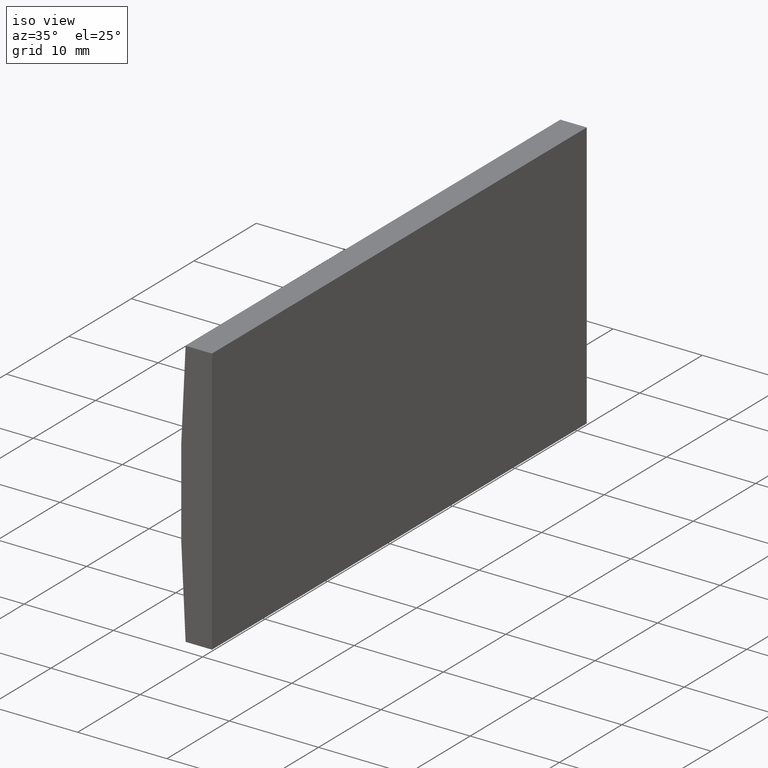
[diagram: clean part render]
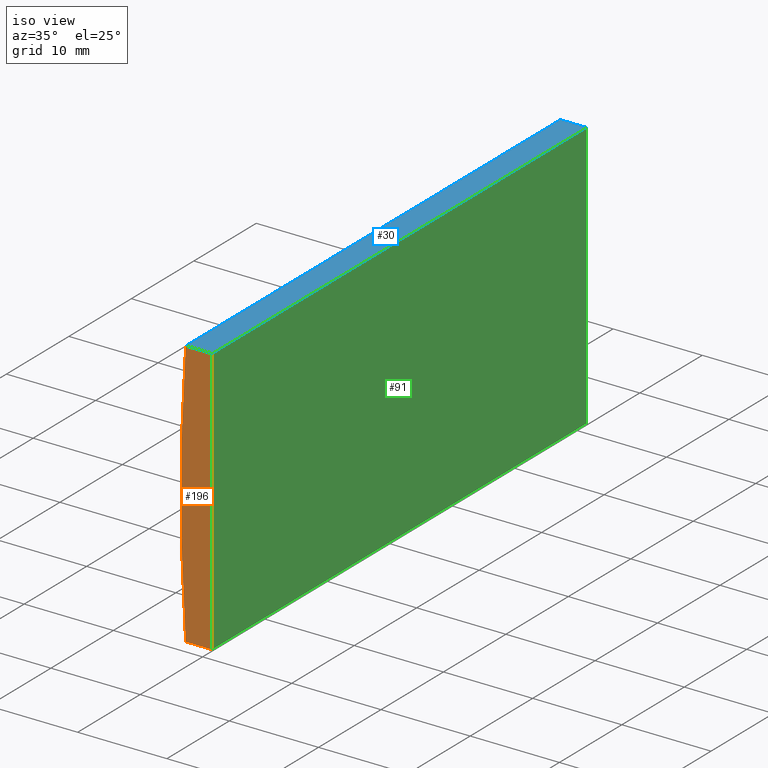
[diagram: same view with three faces highlighted in distinct colors, each labeled with its STEP entity id]
A machine part, iso view with three faces highlighted in distinct colors.
Their STEP definitions:

[orange] entity #196 — the highlighted planar face has unit normal (0, 1, 0).
#5 = CIRCLE ( 'NONE', #136, 206.8000000000000400 ) ;
#9 = CARTESIAN_POINT ( 'NONE',  ( -198.9447956651487500, 0.0000000000000000000, 15.00000000000000000 ) ) ;
#12 = VECTOR ( 'NONE', #93, 1000.000000000000000 ) ;
#21 = ORIENTED_EDGE ( 'NONE', *, *, #84, .F. ) ;
#38 = DIRECTION ( 'NONE',  ( 0.0000000000000000000, 1.000000000000000000, 0.0000000000000000000 ) ) ;
#56 = VERTEX_POINT ( 'NONE', #157 ) ;
#60 = EDGE_CURVE ( 'NONE', #118, #56, #5, .T. ) ;
#63 = LINE ( 'NONE', #129, #90 ) ;
#68 = CARTESIAN_POINT ( 'NONE',  ( 4.355204334851265500, 0.0000000000000000000, 4.286263797015675000E-017 ) ) ;
#73 = VECTOR ( 'NONE', #134, 1000.000000000000000 ) ;
#75 = CARTESIAN_POINT ( 'NONE',  ( -201.9000743854763000, 0.0000000000000000000, -15.00000000000000000 ) ) ;
#80 = EDGE_LOOP ( 'NONE', ( #192, #21, #106, #155 ) ) ;
#84 = EDGE_CURVE ( 'NONE', #163, #118, #63, .T. ) ;
#86 = CARTESIAN_POINT ( 'NONE',  ( -198.9447956651487500, 0.0000000000000000000, -15.00000000000000400 ) ) ;
#88 = AXIS2_PLACEMENT_3D ( 'NONE', #68, #191, #130 ) ;
#89 = VERTEX_POINT ( 'NONE', #9 ) ;
#90 = VECTOR ( 'NONE', #164, 1000.000000000000000 ) ;
#93 = DIRECTION ( 'NONE',  ( -0.0000000000000000000, -0.0000000000000000000, -1.000000000000000000 ) ) ;
#98 = EDGE_CURVE ( 'NONE', #89, #163, #203, .T. ) ;
#102 = CARTESIAN_POINT ( 'NONE',  ( -198.9447956651487500, 0.0000000000000000000, -15.00000000000000400 ) ) ;
#106 = ORIENTED_EDGE ( 'NONE', *, *, #98, .F. ) ;
#111 = FACE_OUTER_BOUND ( 'NONE', #80, .T. ) ;
#118 = VERTEX_POINT ( 'NONE', #75 ) ;
#122 = CARTESIAN_POINT ( 'NONE',  ( -201.9000743854763000, 0.0000000000000000000, 15.00000000000000000 ) ) ;
#123 = LINE ( 'NONE', #122, #73 ) ;
#125 = PLANE ( 'NONE',  #88 ) ;
#129 = CARTESIAN_POINT ( 'NONE',  ( -201.9000743854763000, 0.0000000000000000000, -15.00000000000000000 ) ) ;
#130 = DIRECTION ( 'NONE',  ( 0.0000000000000000000, -0.0000000000000000000, 1.000000000000000000 ) ) ;
#134 = DIRECTION ( 'NONE',  ( 1.000000000000000000, 0.0000000000000000000, 0.0000000000000000000 ) ) ;
#136 = AXIS2_PLACEMENT_3D ( 'NONE', #177, #38, #181 ) ;
#155 = ORIENTED_EDGE ( 'NONE', *, *, #179, .F. ) ;
#157 = CARTESIAN_POINT ( 'NONE',  ( -201.9000743854763000, 0.0000000000000000000, 15.00000000000000000 ) ) ;
#163 = VERTEX_POINT ( 'NONE', #86 ) ;
#164 = DIRECTION ( 'NONE',  ( -1.000000000000000000, -0.0000000000000000000, 1.173982991211425300E-015 ) ) ;
#177 = CARTESIAN_POINT ( 'NONE',  ( 4.355204334851265500, 0.0000000000000000000, 4.286263797015675000E-017 ) ) ;
#179 = EDGE_CURVE ( 'NONE', #56, #89, #123, .T. ) ;
#181 = DIRECTION ( 'NONE',  ( 0.0000000000000000000, 0.0000000000000000000, 1.000000000000000000 ) ) ;
#191 = DIRECTION ( 'NONE',  ( 0.0000000000000000000, 1.000000000000000000, 0.0000000000000000000 ) ) ;
#192 = ORIENTED_EDGE ( 'NONE', *, *, #60, .F. ) ;
#196 = ADVANCED_FACE ( 'NONE', ( #111 ), #125, .F. ) ;
#203 = LINE ( 'NONE', #102, #12 ) ;

[blue] entity #30 — the highlighted planar face has unit normal (0, 0, -1).
#1 = CARTESIAN_POINT ( 'NONE',  ( -201.9000743854763000, 60.00000000000000000, 15.00000000000000000 ) ) ;
#2 = LINE ( 'NONE', #160, #138 ) ;
#9 = CARTESIAN_POINT ( 'NONE',  ( -198.9447956651487500, 0.0000000000000000000, 15.00000000000000000 ) ) ;
#13 = PLANE ( 'NONE',  #204 ) ;
#19 = CARTESIAN_POINT ( 'NONE',  ( -201.9000743854763000, 60.00000000000000000, 15.00000000000000000 ) ) ;
#23 = ORIENTED_EDGE ( 'NONE', *, *, #179, .T. ) ;
#28 = VECTOR ( 'NONE', #182, 1000.000000000000000 ) ;
#30 = ADVANCED_FACE ( 'NONE', ( #128 ), #13, .F. ) ;
#54 = DIRECTION ( 'NONE',  ( 1.000000000000000000, 0.0000000000000000000, 0.0000000000000000000 ) ) ;
#56 = VERTEX_POINT ( 'NONE', #157 ) ;
#58 = EDGE_CURVE ( 'NONE', #97, #139, #92, .T. ) ;
#62 = EDGE_CURVE ( 'NONE', #97, #56, #69, .T. ) ;
#69 = LINE ( 'NONE', #94, #28 ) ;
#73 = VECTOR ( 'NONE', #134, 1000.000000000000000 ) ;
#77 = ORIENTED_EDGE ( 'NONE', *, *, #58, .F. ) ;
#79 = DIRECTION ( 'NONE',  ( -0.0000000000000000000, -1.000000000000000000, -0.0000000000000000000 ) ) ;
#81 = CARTESIAN_POINT ( 'NONE',  ( -198.9447956651487500, 60.00000000000000000, 15.00000000000000000 ) ) ;
#89 = VERTEX_POINT ( 'NONE', #9 ) ;
#92 = LINE ( 'NONE', #188, #141 ) ;
#94 = CARTESIAN_POINT ( 'NONE',  ( -201.9000743854763000, 60.00000000000000000, 15.00000000000000000 ) ) ;
#97 = VERTEX_POINT ( 'NONE', #1 ) ;
#122 = CARTESIAN_POINT ( 'NONE',  ( -201.9000743854763000, 0.0000000000000000000, 15.00000000000000000 ) ) ;
#123 = LINE ( 'NONE', #122, #73 ) ;
#128 = FACE_OUTER_BOUND ( 'NONE', #153, .T. ) ;
#134 = DIRECTION ( 'NONE',  ( 1.000000000000000000, 0.0000000000000000000, 0.0000000000000000000 ) ) ;
#138 = VECTOR ( 'NONE', #79, 1000.000000000000000 ) ;
#139 = VERTEX_POINT ( 'NONE', #81 ) ;
#140 = ORIENTED_EDGE ( 'NONE', *, *, #62, .T. ) ;
#141 = VECTOR ( 'NONE', #54, 1000.000000000000000 ) ;
#153 = EDGE_LOOP ( 'NONE', ( #23, #175, #77, #140 ) ) ;
#157 = CARTESIAN_POINT ( 'NONE',  ( -201.9000743854763000, 0.0000000000000000000, 15.00000000000000000 ) ) ;
#160 = CARTESIAN_POINT ( 'NONE',  ( -198.9447956651487500, 60.00000000000000000, 15.00000000000000000 ) ) ;
#162 = DIRECTION ( 'NONE',  ( -1.000000000000000000, 0.0000000000000000000, -0.0000000000000000000 ) ) ;
#175 = ORIENTED_EDGE ( 'NONE', *, *, #197, .F. ) ;
#179 = EDGE_CURVE ( 'NONE', #56, #89, #123, .T. ) ;
#182 = DIRECTION ( 'NONE',  ( -0.0000000000000000000, -1.000000000000000000, -0.0000000000000000000 ) ) ;
#188 = CARTESIAN_POINT ( 'NONE',  ( -201.9000743854763000, 60.00000000000000000, 15.00000000000000000 ) ) ;
#197 = EDGE_CURVE ( 'NONE', #139, #89, #2, .T. ) ;
#199 = DIRECTION ( 'NONE',  ( 0.0000000000000000000, 0.0000000000000000000, -1.000000000000000000 ) ) ;
#204 = AXIS2_PLACEMENT_3D ( 'NONE', #19, #199, #162 ) ;

[green] entity #91 — the highlighted planar face has unit normal (-1, 0, 0).
#2 = LINE ( 'NONE', #160, #138 ) ;
#8 = ORIENTED_EDGE ( 'NONE', *, *, #197, .T. ) ;
#9 = CARTESIAN_POINT ( 'NONE',  ( -198.9447956651487500, 0.0000000000000000000, 15.00000000000000000 ) ) ;
#12 = VECTOR ( 'NONE', #93, 1000.000000000000000 ) ;
#20 = DIRECTION ( 'NONE',  ( 0.0000000000000000000, 0.0000000000000000000, 1.000000000000000000 ) ) ;
#22 = VERTEX_POINT ( 'NONE', #185 ) ;
#29 = CARTESIAN_POINT ( 'NONE',  ( -198.9447956651487500, 60.00000000000000000, -15.00000000000000400 ) ) ;
#31 = ORIENTED_EDGE ( 'NONE', *, *, #52, .F. ) ;
#32 = VECTOR ( 'NONE', #47, 1000.000000000000000 ) ;
#36 = DIRECTION ( 'NONE',  ( -0.0000000000000000000, -0.0000000000000000000, -1.000000000000000000 ) ) ;
#40 = ORIENTED_EDGE ( 'NONE', *, *, #98, .T. ) ;
#47 = DIRECTION ( 'NONE',  ( -0.0000000000000000000, -1.000000000000000000, -0.0000000000000000000 ) ) ;
#50 = CARTESIAN_POINT ( 'NONE',  ( -198.9447956651487500, 60.00000000000000000, -15.00000000000000400 ) ) ;
#52 = EDGE_CURVE ( 'NONE', #22, #163, #173, .T. ) ;
#66 = DIRECTION ( 'NONE',  ( -1.000000000000000000, 0.0000000000000000000, 0.0000000000000000000 ) ) ;
#79 = DIRECTION ( 'NONE',  ( -0.0000000000000000000, -1.000000000000000000, -0.0000000000000000000 ) ) ;
#81 = CARTESIAN_POINT ( 'NONE',  ( -198.9447956651487500, 60.00000000000000000, 15.00000000000000000 ) ) ;
#86 = CARTESIAN_POINT ( 'NONE',  ( -198.9447956651487500, 0.0000000000000000000, -15.00000000000000400 ) ) ;
#87 = CARTESIAN_POINT ( 'NONE',  ( -198.9447956651487500, 60.00000000000000000, -15.00000000000000400 ) ) ;
#89 = VERTEX_POINT ( 'NONE', #9 ) ;
#91 = ADVANCED_FACE ( 'NONE', ( #132 ), #189, .F. ) ;
#93 = DIRECTION ( 'NONE',  ( -0.0000000000000000000, -0.0000000000000000000, -1.000000000000000000 ) ) ;
#95 = EDGE_CURVE ( 'NONE', #139, #22, #198, .T. ) ;
#98 = EDGE_CURVE ( 'NONE', #89, #163, #203, .T. ) ;
#102 = CARTESIAN_POINT ( 'NONE',  ( -198.9447956651487500, 0.0000000000000000000, -15.00000000000000400 ) ) ;
#132 = FACE_OUTER_BOUND ( 'NONE', #156, .T. ) ;
#138 = VECTOR ( 'NONE', #79, 1000.000000000000000 ) ;
#139 = VERTEX_POINT ( 'NONE', #81 ) ;
#156 = EDGE_LOOP ( 'NONE', ( #40, #31, #178, #8 ) ) ;
#160 = CARTESIAN_POINT ( 'NONE',  ( -198.9447956651487500, 60.00000000000000000, 15.00000000000000000 ) ) ;
#163 = VERTEX_POINT ( 'NONE', #86 ) ;
#167 = VECTOR ( 'NONE', #36, 1000.000000000000000 ) ;
#169 = AXIS2_PLACEMENT_3D ( 'NONE', #87, #66, #20 ) ;
#173 = LINE ( 'NONE', #50, #32 ) ;
#178 = ORIENTED_EDGE ( 'NONE', *, *, #95, .F. ) ;
#185 = CARTESIAN_POINT ( 'NONE',  ( -198.9447956651487500, 60.00000000000000000, -15.00000000000000400 ) ) ;
#189 = PLANE ( 'NONE',  #169 ) ;
#197 = EDGE_CURVE ( 'NONE', #139, #89, #2, .T. ) ;
#198 = LINE ( 'NONE', #29, #167 ) ;
#203 = LINE ( 'NONE', #102, #12 ) ;